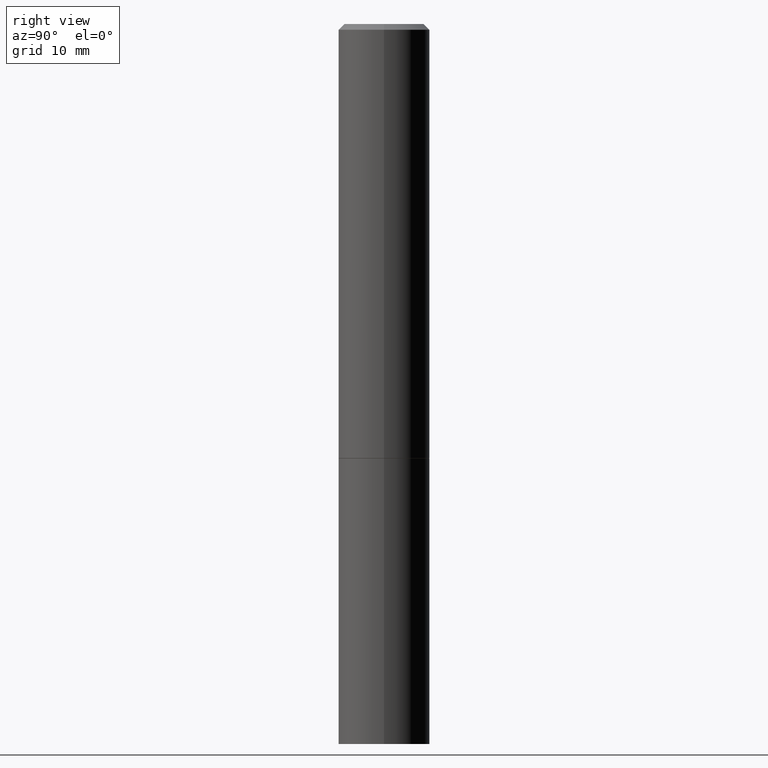
[diagram: clean part render]
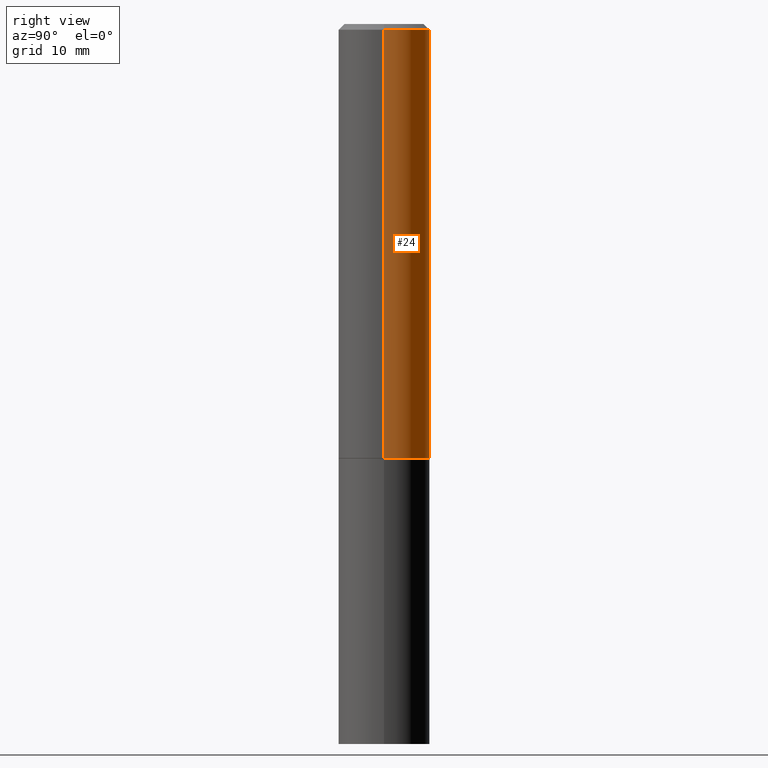
[diagram: same view with one face highlighted and labeled with its STEP entity id]
A machine part, right view. The second image highlights one B-rep face of the part: STEP entity #24.
In plain terms, the highlighted cylindrical surface (partial cylindrical patch) has radius 4.0005 mm, axis along (-0, 0, 1).
Its self-contained STEP definition (entity closure, byte-faithful):
#1 = CARTESIAN_POINT ( 'NONE',  ( -0.1574999999999999456, 1.119104808822157406E-15, -7.747322767151474182E-30 ) ) ;
#2 = DIRECTION ( 'NONE',  ( 1.000000000000000000, -6.982962677686267499E-15, 4.876176775795935793E-29 ) ) ;
#9 = CARTESIAN_POINT ( 'NONE',  ( 0.1574999999999999456, -1.099816621735586691E-15, 7.679978421878596632E-30 ) ) ;
#24 = ADVANCED_FACE ( 'NONE', ( #31 ), #32, .T. ) ;
#31 = FACE_OUTER_BOUND ( 'NONE', #68, .T. ) ;
#32 = CYLINDRICAL_SURFACE ( 'NONE', #302, 0.1574999999999999456 ) ;
#35 = DIRECTION ( 'NONE',  ( -2.445468806185136597E-29, 3.491481338843145583E-15, 1.000000000000000000 ) ) ;
#39 = EDGE_CURVE ( 'NONE', #57, #297, #315, .T. ) ;
#50 = VECTOR ( 'NONE', #109, 39.37007874015748143 ) ;
#57 = VERTEX_POINT ( 'NONE', #294 ) ;
#68 = EDGE_LOOP ( 'NONE', ( #237, #168, #263, #228 ) ) ;
#71 = EDGE_CURVE ( 'NONE', #270, #128, #177, .T. ) ;
#98 = CARTESIAN_POINT ( 'NONE',  ( -0.1574999999999998623, 1.029986994958722999E-15, -0.02000000000000003511 ) ) ;
#106 = CARTESIAN_POINT ( 'NONE',  ( 3.655975865246779683E-29, -5.219764601570503930E-15, -1.495000000000000329 ) ) ;
#109 = DIRECTION ( 'NONE',  ( -2.445468806185136877E-29, 3.491481338843145188E-15, 1.000000000000000000 ) ) ;
#111 = CARTESIAN_POINT ( 'NONE',  ( 0.1574999999999998623, -1.150358061425878289E-15, -0.02000000000000003511 ) ) ;
#122 = CARTESIAN_POINT ( 'NONE',  ( 4.890937612370281041E-31, -6.982962677686302702E-17, -0.02000000000000003511 ) ) ;
#127 = DIRECTION ( 'NONE',  ( -2.445468806185136597E-29, 3.491481338843145583E-15, 1.000000000000000000 ) ) ;
#128 = VERTEX_POINT ( 'NONE', #98 ) ;
#133 = CARTESIAN_POINT ( 'NONE',  ( 0.000000000000000000, 0.000000000000000000, 0.000000000000000000 ) ) ;
#141 = AXIS2_PLACEMENT_3D ( 'NONE', #106, #221, #233 ) ;
#167 = CARTESIAN_POINT ( 'NONE',  ( -0.1575000000000000566, -1.525692305351523841E-15, -1.495000000000000329 ) ) ;
#168 = ORIENTED_EDGE ( 'NONE', *, *, #183, .T. ) ;
#177 = CIRCLE ( 'NONE', #217, 0.1574999999999998623 ) ;
#183 = EDGE_CURVE ( 'NONE', #297, #128, #243, .T. ) ;
#217 = AXIS2_PLACEMENT_3D ( 'NONE', #122, #127, #359 ) ;
#221 = DIRECTION ( 'NONE',  ( -2.445468806185136597E-29, 3.491481338843145583E-15, 1.000000000000000000 ) ) ;
#223 = LINE ( 'NONE', #9, #50 ) ;
#228 = ORIENTED_EDGE ( 'NONE', *, *, #312, .F. ) ;
#233 = DIRECTION ( 'NONE',  ( 1.000000000000000000, -6.982962677686265922E-15, 0.000000000000000000 ) ) ;
#237 = ORIENTED_EDGE ( 'NONE', *, *, #39, .T. ) ;
#243 = LINE ( 'NONE', #1, #329 ) ;
#263 = ORIENTED_EDGE ( 'NONE', *, *, #71, .F. ) ;
#270 = VERTEX_POINT ( 'NONE', #111 ) ;
#294 = CARTESIAN_POINT ( 'NONE',  ( 0.1575000000000000566, -6.319581223306091410E-15, -1.495000000000000329 ) ) ;
#297 = VERTEX_POINT ( 'NONE', #167 ) ;
#302 = AXIS2_PLACEMENT_3D ( 'NONE', #133, #35, #2 ) ;
#312 = EDGE_CURVE ( 'NONE', #57, #270, #223, .T. ) ;
#315 = CIRCLE ( 'NONE', #141, 0.1575000000000000566 ) ;
#329 = VECTOR ( 'NONE', #333, 39.37007874015748143 ) ;
#333 = DIRECTION ( 'NONE',  ( -2.445468806185136877E-29, 3.491481338843145188E-15, 1.000000000000000000 ) ) ;
#359 = DIRECTION ( 'NONE',  ( 1.000000000000000000, -6.982962677686266711E-15, 0.000000000000000000 ) ) ;